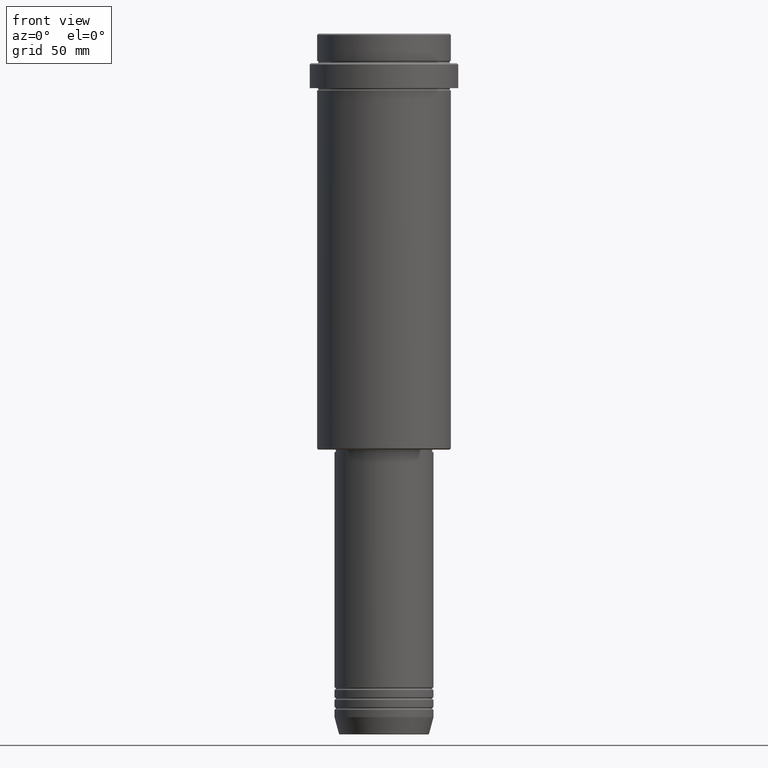
[diagram: clean part render]
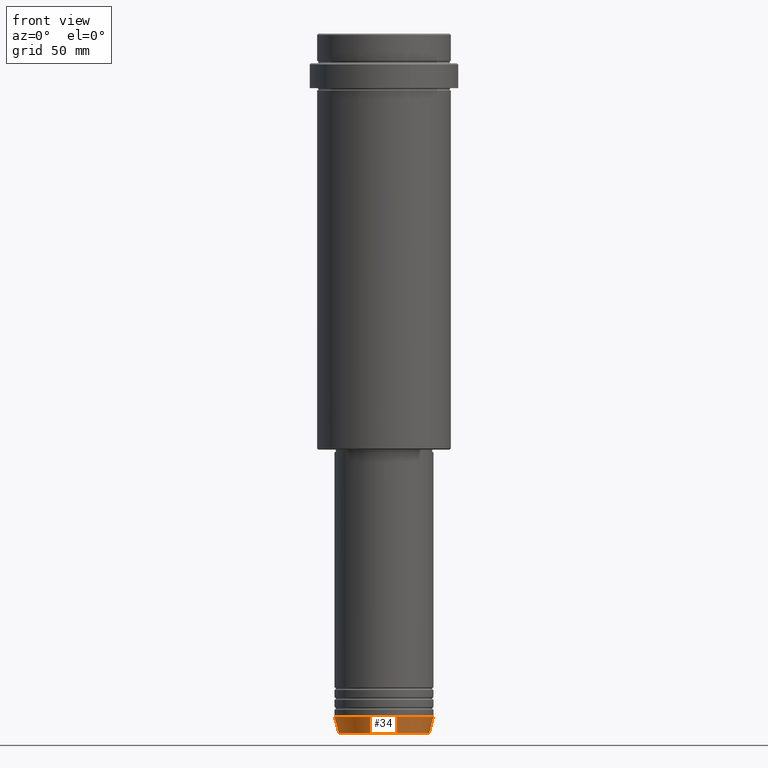
[diagram: same view with one face highlighted and labeled with its STEP entity id]
A machine part, front view. The second image highlights one B-rep face of the part: STEP entity #34.
In plain terms, the highlighted conical surface has half-angle 15 deg.
Its self-contained STEP definition (entity closure, byte-faithful):
#28 = EDGE_CURVE ( 'NONE', #250, #598, #856, .T. ) ;
#34 = ADVANCED_FACE ( 'NONE', ( #637 ), #712, .T. ) ;
#51 = EDGE_CURVE ( 'NONE', #598, #612, #534, .T. ) ;
#70 = DIRECTION ( 'NONE',  ( -0.000000000000000000, -0.000000000000000000, 1.000000000000000000 ) ) ;
#84 = AXIS2_PLACEMENT_3D ( 'NONE', #1062, #1175, #1067 ) ;
#88 = CARTESIAN_POINT ( 'NONE',  ( -18.22365507213718772, 2.340523841790264718E-15, -282.6294095225512706 ) ) ;
#94 = DIRECTION ( 'NONE',  ( -0.000000000000000000, -0.000000000000000000, 1.000000000000000000 ) ) ;
#170 = ORIENTED_EDGE ( 'NONE', *, *, #28, .F. ) ;
#250 = VERTEX_POINT ( 'NONE', #88 ) ;
#268 = AXIS2_PLACEMENT_3D ( 'NONE', #861, #70, #948 ) ;
#308 = DIRECTION ( 'NONE',  ( -0.2588190451025213501, 3.169619151431772337E-17, 0.9659258262890680902 ) ) ;
#338 = DIRECTION ( 'NONE',  ( 0.2588190451025213501, 0.000000000000000000, 0.9659258262890680902 ) ) ;
#357 = ORIENTED_EDGE ( 'NONE', *, *, #51, .F. ) ;
#523 = CARTESIAN_POINT ( 'NONE',  ( 18.22365507213718772, 0.000000000000000000, -282.6294095225512706 ) ) ;
#534 = CIRCLE ( 'NONE', #268, 20.00000000000000000 ) ;
#535 = CIRCLE ( 'NONE', #802, 18.22365507213718772 ) ;
#547 = DIRECTION ( 'NONE',  ( 1.000000000000000000, 0.000000000000000000, 0.000000000000000000 ) ) ;
#598 = VERTEX_POINT ( 'NONE', #642 ) ;
#612 = VERTEX_POINT ( 'NONE', #857 ) ;
#637 = FACE_OUTER_BOUND ( 'NONE', #744, .T. ) ;
#642 = CARTESIAN_POINT ( 'NONE',  ( -20.00000000000000000, 2.449293598294706513E-15, -276.0000000000000000 ) ) ;
#668 = VECTOR ( 'NONE', #338, 1000.000000000000000 ) ;
#692 = ORIENTED_EDGE ( 'NONE', *, *, #1255, .T. ) ;
#712 = CONICAL_SURFACE ( 'NONE', #84, 20.00000000000000000, 0.2617993877991500740 ) ;
#744 = EDGE_LOOP ( 'NONE', ( #170, #1374, #692, #357 ) ) ;
#802 = AXIS2_PLACEMENT_3D ( 'NONE', #1153, #94, #547 ) ;
#856 = LINE ( 'NONE', #1392, #976 ) ;
#857 = CARTESIAN_POINT ( 'NONE',  ( 20.00000000000000000, 0.000000000000000000, -276.0000000000000000 ) ) ;
#861 = CARTESIAN_POINT ( 'NONE',  ( 0.000000000000000000, 0.000000000000000000, -276.0000000000000000 ) ) ;
#948 = DIRECTION ( 'NONE',  ( 1.000000000000000000, 0.000000000000000000, 0.000000000000000000 ) ) ;
#976 = VECTOR ( 'NONE', #308, 1000.000000000000000 ) ;
#1035 = VERTEX_POINT ( 'NONE', #523 ) ;
#1062 = CARTESIAN_POINT ( 'NONE',  ( 0.000000000000000000, 0.000000000000000000, -276.0000000000000000 ) ) ;
#1067 = DIRECTION ( 'NONE',  ( 1.000000000000000000, 0.000000000000000000, 0.000000000000000000 ) ) ;
#1115 = EDGE_CURVE ( 'NONE', #250, #1035, #535, .T. ) ;
#1153 = CARTESIAN_POINT ( 'NONE',  ( 0.000000000000000000, 0.000000000000000000, -282.6294095225512706 ) ) ;
#1175 = DIRECTION ( 'NONE',  ( -0.000000000000000000, -0.000000000000000000, 1.000000000000000000 ) ) ;
#1255 = EDGE_CURVE ( 'NONE', #1035, #612, #1327, .T. ) ;
#1304 = CARTESIAN_POINT ( 'NONE',  ( 20.00000000000000000, 0.000000000000000000, -276.0000000000000000 ) ) ;
#1327 = LINE ( 'NONE', #1304, #668 ) ;
#1374 = ORIENTED_EDGE ( 'NONE', *, *, #1115, .T. ) ;
#1392 = CARTESIAN_POINT ( 'NONE',  ( -20.00000000000000000, 2.449293598294706513E-15, -276.0000000000000000 ) ) ;